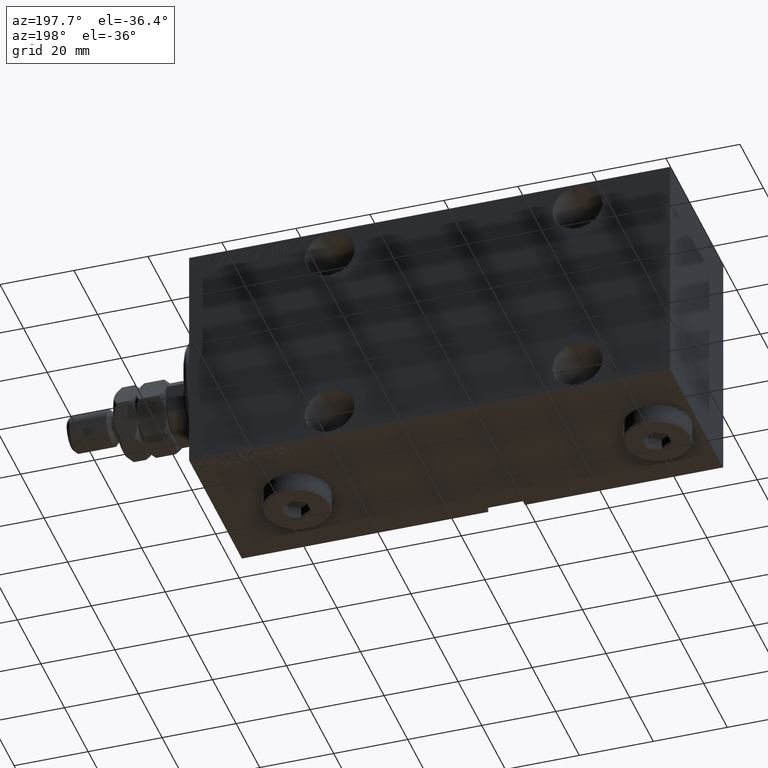
[diagram: clean part render]
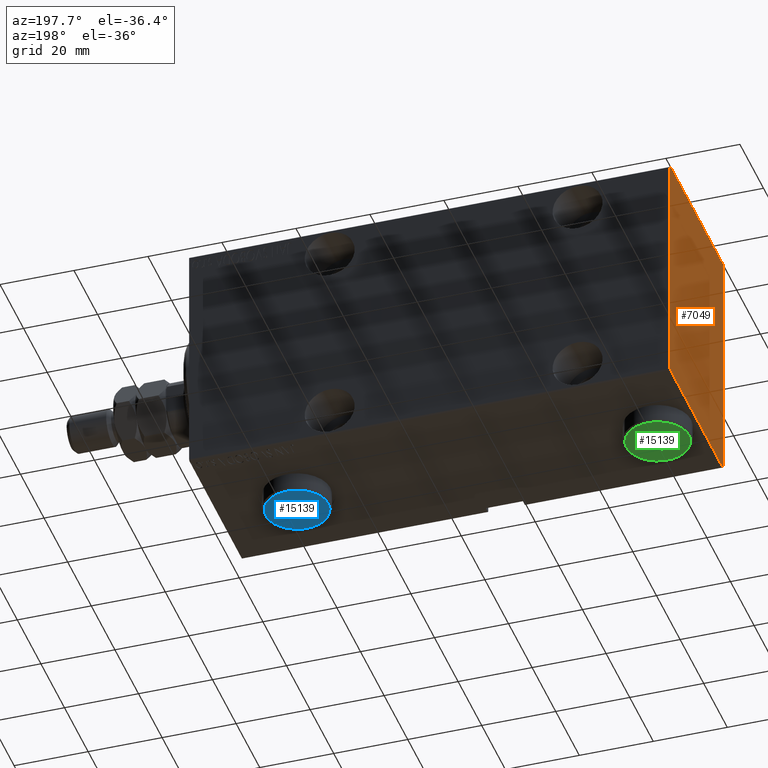
[diagram: same view with three faces highlighted in distinct colors, each labeled with its STEP entity id]
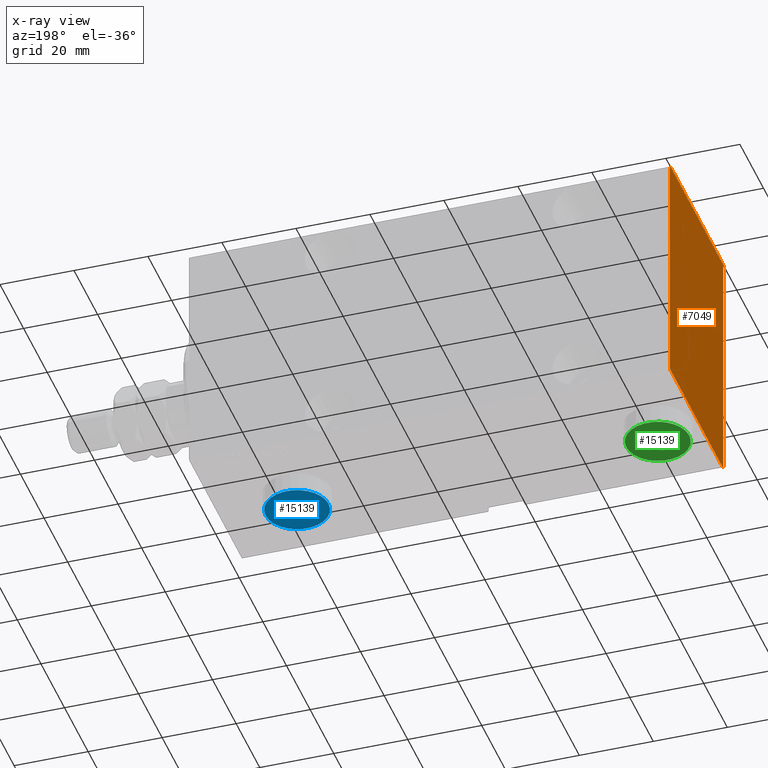
[diagram: x-ray of the same camera — body ghosted, the three highlighted faces saturated]
A machine part, auxiliary view with three faces highlighted in distinct colors.
The next image is the same camera in x-ray (body ghosted, the three faces saturated) — at least one of them is partly hidden behind the body in this view.
Their STEP definitions:

[orange] entity #7049 — the highlighted planar face has unit normal (-1, 0, 0).
#67 = PLANE ( 'NONE',  #12919 ) ;
#446 = ORIENTED_EDGE ( 'NONE', *, *, #28469, .T. ) ;
#931 = DIRECTION ( 'NONE',  ( 0.000000000000000000, 1.000000000000000000, 0.000000000000000000 ) ) ;
#2211 = EDGE_CURVE ( 'NONE', #10384, #12604, #6983, .T. ) ;
#2829 = EDGE_CURVE ( 'NONE', #12604, #15970, #19184, .T. ) ;
#4283 = CARTESIAN_POINT ( 'NONE',  ( 130.0000000000000000, -27.34999999999999076, -27.34999999999999076 ) ) ;
#5283 = CARTESIAN_POINT ( 'NONE',  ( 130.0000000000000000, 22.49999999999999645, 32.20000000000000284 ) ) ;
#6983 = LINE ( 'NONE', #35369, #31333 ) ;
#7049 = ADVANCED_FACE ( 'NONE', ( #42419 ), #67, .T. ) ;
#7287 = DIRECTION ( 'NONE',  ( 0.000000000000000000, 0.000000000000000000, -1.000000000000000000 ) ) ;
#7296 = DIRECTION ( 'NONE',  ( -0.000000000000000000, 0.7071067811865474617, 0.7071067811865474617 ) ) ;
#7636 = EDGE_CURVE ( 'NONE', #35676, #17158, #22506, .T. ) ;
#8092 = VERTEX_POINT ( 'NONE', #22098 ) ;
#8664 = VECTOR ( 'NONE', #29618, 1000.000000000000114 ) ;
#9105 = EDGE_CURVE ( 'NONE', #17158, #8092, #9768, .T. ) ;
#9322 = CARTESIAN_POINT ( 'NONE',  ( 130.0000000000000000, 22.50000000000000355, -32.19999999999999574 ) ) ;
#9768 = LINE ( 'NONE', #16521, #30049 ) ;
#10384 = VERTEX_POINT ( 'NONE', #17374 ) ;
#10665 = CARTESIAN_POINT ( 'NONE',  ( 130.0000000000000000, -22.19999999999998863, -32.50000000000000000 ) ) ;
#12604 = VERTEX_POINT ( 'NONE', #34879 ) ;
#12919 = AXIS2_PLACEMENT_3D ( 'NONE', #24942, #39162, #7287 ) ;
#13404 = VECTOR ( 'NONE', #931, 1000.000000000000000 ) ;
#14887 = CARTESIAN_POINT ( 'NONE',  ( 130.0000000000000000, -22.49999999999999645, -32.50000000000000000 ) ) ;
#15520 = LINE ( 'NONE', #40880, #40885 ) ;
#15748 = DIRECTION ( 'NONE',  ( 0.000000000000000000, -1.000000000000000000, -1.541976423090495633E-16 ) ) ;
#15970 = VERTEX_POINT ( 'NONE', #25459 ) ;
#16247 = EDGE_CURVE ( 'NONE', #27125, #35676, #42429, .T. ) ;
#16256 = ORIENTED_EDGE ( 'NONE', *, *, #35409, .T. ) ;
#16521 = CARTESIAN_POINT ( 'NONE',  ( 130.0000000000000000, 27.34999999999974207, 27.35000000000037446 ) ) ;
#17158 = VERTEX_POINT ( 'NONE', #5283 ) ;
#17374 = CARTESIAN_POINT ( 'NONE',  ( 130.0000000000000000, -22.19999999999999929, 32.50000000000000000 ) ) ;
#17685 = DIRECTION ( 'NONE',  ( 0.000000000000000000, -0.7071067811865474617, -0.7071067811865474617 ) ) ;
#19184 = LINE ( 'NONE', #43392, #28376 ) ;
#20453 = ORIENTED_EDGE ( 'NONE', *, *, #2211, .T. ) ;
#21697 = CARTESIAN_POINT ( 'NONE',  ( 130.0000000000000000, 27.34999999999999432, -27.34999999999999432 ) ) ;
#22098 = CARTESIAN_POINT ( 'NONE',  ( 130.0000000000000000, 22.19999999999998863, 32.50000000000000711 ) ) ;
#22506 = LINE ( 'NONE', #36484, #23339 ) ;
#23339 = VECTOR ( 'NONE', #43923, 1000.000000000000000 ) ;
#24171 = DIRECTION ( 'NONE',  ( -0.000000000000000000, -0.7071067811865556774, 0.7071067811865393571 ) ) ;
#24942 = CARTESIAN_POINT ( 'NONE',  ( 130.0000000000000000, 0.000000000000000000, 0.000000000000000000 ) ) ;
#25459 = CARTESIAN_POINT ( 'NONE',  ( 130.0000000000000000, -22.49999999999999645, -32.19999999999999574 ) ) ;
#27125 = VERTEX_POINT ( 'NONE', #30139 ) ;
#28376 = VECTOR ( 'NONE', #36647, 1000.000000000000000 ) ;
#28469 = EDGE_CURVE ( 'NONE', #33823, #27125, #32800, .T. ) ;
#28999 = EDGE_CURVE ( 'NONE', #8092, #10384, #15520, .T. ) ;
#29618 = DIRECTION ( 'NONE',  ( -0.000000000000000000, 0.7071067811865474617, -0.7071067811865474617 ) ) ;
#30049 = VECTOR ( 'NONE', #24171, 1000.000000000000000 ) ;
#30139 = CARTESIAN_POINT ( 'NONE',  ( 130.0000000000000000, 22.19999999999998153, -32.50000000000000000 ) ) ;
#31333 = VECTOR ( 'NONE', #17685, 1000.000000000000114 ) ;
#31678 = ORIENTED_EDGE ( 'NONE', *, *, #16247, .T. ) ;
#32800 = LINE ( 'NONE', #14887, #13404 ) ;
#33823 = VERTEX_POINT ( 'NONE', #10665 ) ;
#34142 = ORIENTED_EDGE ( 'NONE', *, *, #28999, .T. ) ;
#34705 = VECTOR ( 'NONE', #7296, 1000.000000000000114 ) ;
#34879 = CARTESIAN_POINT ( 'NONE',  ( 130.0000000000000000, -22.49999999999999645, 32.20000000000001705 ) ) ;
#35369 = CARTESIAN_POINT ( 'NONE',  ( 130.0000000000000000, -27.35000000000000497, 27.35000000000000497 ) ) ;
#35409 = EDGE_CURVE ( 'NONE', #15970, #33823, #36618, .T. ) ;
#35676 = VERTEX_POINT ( 'NONE', #9322 ) ;
#36484 = CARTESIAN_POINT ( 'NONE',  ( 130.0000000000000000, 22.50000000000000355, -32.50000000000000000 ) ) ;
#36618 = LINE ( 'NONE', #4283, #8664 ) ;
#36647 = DIRECTION ( 'NONE',  ( 0.000000000000000000, 0.000000000000000000, -1.000000000000000000 ) ) ;
#39162 = DIRECTION ( 'NONE',  ( 1.000000000000000000, 0.000000000000000000, 0.000000000000000000 ) ) ;
#40880 = CARTESIAN_POINT ( 'NONE',  ( 130.0000000000000000, 22.49999999999999645, 32.50000000000000711 ) ) ;
#40885 = VECTOR ( 'NONE', #15748, 1000.000000000000000 ) ;
#42359 = ORIENTED_EDGE ( 'NONE', *, *, #7636, .T. ) ;
#42419 = FACE_OUTER_BOUND ( 'NONE', #43212, .T. ) ;
#42429 = LINE ( 'NONE', #21697, #34705 ) ;
#42739 = ORIENTED_EDGE ( 'NONE', *, *, #2829, .T. ) ;
#43212 = EDGE_LOOP ( 'NONE', ( #446, #31678, #42359, #46048, #34142, #20453, #42739, #16256 ) ) ;
#43392 = CARTESIAN_POINT ( 'NONE',  ( 130.0000000000000000, -22.49999999999999645, 32.50000000000000000 ) ) ;
#43923 = DIRECTION ( 'NONE',  ( 0.000000000000000000, -1.067522139062650425E-16, 1.000000000000000000 ) ) ;
#46048 = ORIENTED_EDGE ( 'NONE', *, *, #9105, .T. ) ;

[blue] entity #15139 — the highlighted planar face has unit normal (-0, 0, -1).
#15 = VERTEX_POINT ( 'NONE', #29333 ) ;
#1932 = EDGE_CURVE ( 'NONE', #9987, #45602, #23910, .T. ) ;
#2076 = ORIENTED_EDGE ( 'NONE', *, *, #1932, .T. ) ;
#2516 = CARTESIAN_POINT ( 'NONE',  ( 0.000000000000000000, 0.000000000000000000, 5.000000000000000000 ) ) ;
#2871 = DIRECTION ( 'NONE',  ( 1.000000000000000000, 0.000000000000000000, -0.000000000000000000 ) ) ;
#3092 = LINE ( 'NONE', #28662, #19680 ) ;
#3214 = ORIENTED_EDGE ( 'NONE', *, *, #26721, .T. ) ;
#3865 = AXIS2_PLACEMENT_3D ( 'NONE', #26139, #4071, #35955 ) ;
#4071 = DIRECTION ( 'NONE',  ( 0.000000000000000000, 0.000000000000000000, 1.000000000000000000 ) ) ;
#4686 = CARTESIAN_POINT ( 'NONE',  ( 3.250000000000003109, 2.165063509461103042, 5.000000000000000000 ) ) ;
#5906 = FACE_OUTER_BOUND ( 'NONE', #8350, .T. ) ;
#7216 = VECTOR ( 'NONE', #33062, 1000.000000000000000 ) ;
#7428 = VERTEX_POINT ( 'NONE', #26725 ) ;
#8350 = EDGE_LOOP ( 'NONE', ( #2076, #17476 ) ) ;
#9285 = DIRECTION ( 'NONE',  ( -0.8660254037844387076, -0.4999999999999998890, 0.000000000000000000 ) ) ;
#9466 = EDGE_CURVE ( 'NONE', #24605, #7428, #9492, .T. ) ;
#9481 = EDGE_CURVE ( 'NONE', #7428, #32856, #45311, .T. ) ;
#9492 = LINE ( 'NONE', #44634, #45691 ) ;
#9987 = VERTEX_POINT ( 'NONE', #12811 ) ;
#10048 = DIRECTION ( 'NONE',  ( 0.000000000000000000, -1.000000000000000000, 0.000000000000000000 ) ) ;
#10152 = AXIS2_PLACEMENT_3D ( 'NONE', #41733, #38468, #2871 ) ;
#10735 = LINE ( 'NONE', #45420, #42309 ) ;
#10751 = VECTOR ( 'NONE', #33688, 1000.000000000000000 ) ;
#12811 = CARTESIAN_POINT ( 'NONE',  ( -8.500000000000010658, 0.000000000000000000, 5.000000000000000000 ) ) ;
#12883 = ORIENTED_EDGE ( 'NONE', *, *, #38353, .T. ) ;
#15139 = ADVANCED_FACE ( 'NONE', ( #19870, #5906 ), #23805, .T. ) ;
#16705 = DIRECTION ( 'NONE',  ( 0.000000000000000000, 0.000000000000000000, 1.000000000000000000 ) ) ;
#17090 = VECTOR ( 'NONE', #9285, 1000.000000000000000 ) ;
#17476 = ORIENTED_EDGE ( 'NONE', *, *, #42983, .T. ) ;
#19680 = VECTOR ( 'NONE', #45904, 1000.000000000000000 ) ;
#19756 = EDGE_CURVE ( 'NONE', #23122, #15, #22364, .T. ) ;
#19870 = FACE_BOUND ( 'NONE', #33682, .T. ) ;
#20433 = CARTESIAN_POINT ( 'NONE',  ( 0.2500000000000027756, -3.897114317029979347, 5.000000000000000000 ) ) ;
#21586 = CIRCLE ( 'NONE', #44656, 8.500000000000010658 ) ;
#22364 = LINE ( 'NONE', #4686, #7216 ) ;
#22994 = CARTESIAN_POINT ( 'NONE',  ( -3.500000000000006661, 1.732050807568878081, 5.000000000000000000 ) ) ;
#23122 = VERTEX_POINT ( 'NONE', #30401 ) ;
#23673 = DIRECTION ( 'NONE',  ( -0.8660254037844385966, 0.4999999999999999445, 0.000000000000000000 ) ) ;
#23805 = PLANE ( 'NONE',  #10152 ) ;
#23910 = CIRCLE ( 'NONE', #3865, 8.500000000000010658 ) ;
#24605 = VERTEX_POINT ( 'NONE', #44288 ) ;
#26139 = CARTESIAN_POINT ( 'NONE',  ( 0.000000000000000000, 0.000000000000000000, 5.000000000000000000 ) ) ;
#26721 = EDGE_CURVE ( 'NONE', #15, #41058, #10735, .T. ) ;
#26725 = CARTESIAN_POINT ( 'NONE',  ( -3.500000000000006661, -2.020725942163694278, 5.000000000000000000 ) ) ;
#28662 = CARTESIAN_POINT ( 'NONE',  ( -0.2500000000000027756, 3.897114317029978459, 5.000000000000000000 ) ) ;
#28784 = EDGE_CURVE ( 'NONE', #41058, #24605, #45339, .T. ) ;
#29333 = CARTESIAN_POINT ( 'NONE',  ( 3.500000000000006661, 2.020725942163694722, 5.000000000000000000 ) ) ;
#30401 = CARTESIAN_POINT ( 'NONE',  ( 1.590596867181068292E-15, 4.041451884327386779, 5.000000000000000000 ) ) ;
#30888 = DIRECTION ( 'NONE',  ( 1.000000000000000000, 0.000000000000000000, 0.000000000000000000 ) ) ;
#32856 = VERTEX_POINT ( 'NONE', #40514 ) ;
#33062 = DIRECTION ( 'NONE',  ( 0.8660254037844387076, -0.4999999999999998890, 0.000000000000000000 ) ) ;
#33682 = EDGE_LOOP ( 'NONE', ( #34280, #12883, #35382, #3214, #36908, #39515 ) ) ;
#33688 = DIRECTION ( 'NONE',  ( 0.000000000000000000, 1.000000000000000000, 0.000000000000000000 ) ) ;
#34280 = ORIENTED_EDGE ( 'NONE', *, *, #9481, .T. ) ;
#34591 = CARTESIAN_POINT ( 'NONE',  ( 8.500000000000010658, 1.071565949253934716E-15, 5.000000000000000000 ) ) ;
#35382 = ORIENTED_EDGE ( 'NONE', *, *, #19756, .T. ) ;
#35585 = CARTESIAN_POINT ( 'NONE',  ( 3.500000000000006661, -2.020725942163693833, 5.000000000000000000 ) ) ;
#35955 = DIRECTION ( 'NONE',  ( 1.000000000000000000, 0.000000000000000000, 0.000000000000000000 ) ) ;
#36908 = ORIENTED_EDGE ( 'NONE', *, *, #28784, .T. ) ;
#38353 = EDGE_CURVE ( 'NONE', #32856, #23122, #3092, .T. ) ;
#38468 = DIRECTION ( 'NONE',  ( 0.000000000000000000, 0.000000000000000000, 1.000000000000000000 ) ) ;
#39515 = ORIENTED_EDGE ( 'NONE', *, *, #9466, .T. ) ;
#40514 = CARTESIAN_POINT ( 'NONE',  ( -3.500000000000006661, 2.020725942163692945, 5.000000000000000000 ) ) ;
#41058 = VERTEX_POINT ( 'NONE', #35585 ) ;
#41733 = CARTESIAN_POINT ( 'NONE',  ( 0.000000000000000000, 0.000000000000000000, 5.000000000000000000 ) ) ;
#42309 = VECTOR ( 'NONE', #10048, 1000.000000000000000 ) ;
#42983 = EDGE_CURVE ( 'NONE', #45602, #9987, #21586, .T. ) ;
#44288 = CARTESIAN_POINT ( 'NONE',  ( -1.006139216460143630E-15, -4.041451884327387667, 5.000000000000000000 ) ) ;
#44634 = CARTESIAN_POINT ( 'NONE',  ( -3.250000000000003109, -2.165063509461102598, 5.000000000000000000 ) ) ;
#44656 = AXIS2_PLACEMENT_3D ( 'NONE', #2516, #16705, #30888 ) ;
#45311 = LINE ( 'NONE', #22994, #10751 ) ;
#45339 = LINE ( 'NONE', #20433, #17090 ) ;
#45420 = CARTESIAN_POINT ( 'NONE',  ( 3.500000000000006661, -1.732050807568878303, 5.000000000000000000 ) ) ;
#45602 = VERTEX_POINT ( 'NONE', #34591 ) ;
#45691 = VECTOR ( 'NONE', #23673, 1000.000000000000114 ) ;
#45904 = DIRECTION ( 'NONE',  ( 0.8660254037844387076, 0.4999999999999998335, 0.000000000000000000 ) ) ;

[green] entity #15139 — the highlighted planar face has unit normal (-0, 0, -1).
#15 = VERTEX_POINT ( 'NONE', #29333 ) ;
#1932 = EDGE_CURVE ( 'NONE', #9987, #45602, #23910, .T. ) ;
#2076 = ORIENTED_EDGE ( 'NONE', *, *, #1932, .T. ) ;
#2516 = CARTESIAN_POINT ( 'NONE',  ( 0.000000000000000000, 0.000000000000000000, 5.000000000000000000 ) ) ;
#2871 = DIRECTION ( 'NONE',  ( 1.000000000000000000, 0.000000000000000000, -0.000000000000000000 ) ) ;
#3092 = LINE ( 'NONE', #28662, #19680 ) ;
#3214 = ORIENTED_EDGE ( 'NONE', *, *, #26721, .T. ) ;
#3865 = AXIS2_PLACEMENT_3D ( 'NONE', #26139, #4071, #35955 ) ;
#4071 = DIRECTION ( 'NONE',  ( 0.000000000000000000, 0.000000000000000000, 1.000000000000000000 ) ) ;
#4686 = CARTESIAN_POINT ( 'NONE',  ( 3.250000000000003109, 2.165063509461103042, 5.000000000000000000 ) ) ;
#5906 = FACE_OUTER_BOUND ( 'NONE', #8350, .T. ) ;
#7216 = VECTOR ( 'NONE', #33062, 1000.000000000000000 ) ;
#7428 = VERTEX_POINT ( 'NONE', #26725 ) ;
#8350 = EDGE_LOOP ( 'NONE', ( #2076, #17476 ) ) ;
#9285 = DIRECTION ( 'NONE',  ( -0.8660254037844387076, -0.4999999999999998890, 0.000000000000000000 ) ) ;
#9466 = EDGE_CURVE ( 'NONE', #24605, #7428, #9492, .T. ) ;
#9481 = EDGE_CURVE ( 'NONE', #7428, #32856, #45311, .T. ) ;
#9492 = LINE ( 'NONE', #44634, #45691 ) ;
#9987 = VERTEX_POINT ( 'NONE', #12811 ) ;
#10048 = DIRECTION ( 'NONE',  ( 0.000000000000000000, -1.000000000000000000, 0.000000000000000000 ) ) ;
#10152 = AXIS2_PLACEMENT_3D ( 'NONE', #41733, #38468, #2871 ) ;
#10735 = LINE ( 'NONE', #45420, #42309 ) ;
#10751 = VECTOR ( 'NONE', #33688, 1000.000000000000000 ) ;
#12811 = CARTESIAN_POINT ( 'NONE',  ( -8.500000000000010658, 0.000000000000000000, 5.000000000000000000 ) ) ;
#12883 = ORIENTED_EDGE ( 'NONE', *, *, #38353, .T. ) ;
#15139 = ADVANCED_FACE ( 'NONE', ( #19870, #5906 ), #23805, .T. ) ;
#16705 = DIRECTION ( 'NONE',  ( 0.000000000000000000, 0.000000000000000000, 1.000000000000000000 ) ) ;
#17090 = VECTOR ( 'NONE', #9285, 1000.000000000000000 ) ;
#17476 = ORIENTED_EDGE ( 'NONE', *, *, #42983, .T. ) ;
#19680 = VECTOR ( 'NONE', #45904, 1000.000000000000000 ) ;
#19756 = EDGE_CURVE ( 'NONE', #23122, #15, #22364, .T. ) ;
#19870 = FACE_BOUND ( 'NONE', #33682, .T. ) ;
#20433 = CARTESIAN_POINT ( 'NONE',  ( 0.2500000000000027756, -3.897114317029979347, 5.000000000000000000 ) ) ;
#21586 = CIRCLE ( 'NONE', #44656, 8.500000000000010658 ) ;
#22364 = LINE ( 'NONE', #4686, #7216 ) ;
#22994 = CARTESIAN_POINT ( 'NONE',  ( -3.500000000000006661, 1.732050807568878081, 5.000000000000000000 ) ) ;
#23122 = VERTEX_POINT ( 'NONE', #30401 ) ;
#23673 = DIRECTION ( 'NONE',  ( -0.8660254037844385966, 0.4999999999999999445, 0.000000000000000000 ) ) ;
#23805 = PLANE ( 'NONE',  #10152 ) ;
#23910 = CIRCLE ( 'NONE', #3865, 8.500000000000010658 ) ;
#24605 = VERTEX_POINT ( 'NONE', #44288 ) ;
#26139 = CARTESIAN_POINT ( 'NONE',  ( 0.000000000000000000, 0.000000000000000000, 5.000000000000000000 ) ) ;
#26721 = EDGE_CURVE ( 'NONE', #15, #41058, #10735, .T. ) ;
#26725 = CARTESIAN_POINT ( 'NONE',  ( -3.500000000000006661, -2.020725942163694278, 5.000000000000000000 ) ) ;
#28662 = CARTESIAN_POINT ( 'NONE',  ( -0.2500000000000027756, 3.897114317029978459, 5.000000000000000000 ) ) ;
#28784 = EDGE_CURVE ( 'NONE', #41058, #24605, #45339, .T. ) ;
#29333 = CARTESIAN_POINT ( 'NONE',  ( 3.500000000000006661, 2.020725942163694722, 5.000000000000000000 ) ) ;
#30401 = CARTESIAN_POINT ( 'NONE',  ( 1.590596867181068292E-15, 4.041451884327386779, 5.000000000000000000 ) ) ;
#30888 = DIRECTION ( 'NONE',  ( 1.000000000000000000, 0.000000000000000000, 0.000000000000000000 ) ) ;
#32856 = VERTEX_POINT ( 'NONE', #40514 ) ;
#33062 = DIRECTION ( 'NONE',  ( 0.8660254037844387076, -0.4999999999999998890, 0.000000000000000000 ) ) ;
#33682 = EDGE_LOOP ( 'NONE', ( #34280, #12883, #35382, #3214, #36908, #39515 ) ) ;
#33688 = DIRECTION ( 'NONE',  ( 0.000000000000000000, 1.000000000000000000, 0.000000000000000000 ) ) ;
#34280 = ORIENTED_EDGE ( 'NONE', *, *, #9481, .T. ) ;
#34591 = CARTESIAN_POINT ( 'NONE',  ( 8.500000000000010658, 1.071565949253934716E-15, 5.000000000000000000 ) ) ;
#35382 = ORIENTED_EDGE ( 'NONE', *, *, #19756, .T. ) ;
#35585 = CARTESIAN_POINT ( 'NONE',  ( 3.500000000000006661, -2.020725942163693833, 5.000000000000000000 ) ) ;
#35955 = DIRECTION ( 'NONE',  ( 1.000000000000000000, 0.000000000000000000, 0.000000000000000000 ) ) ;
#36908 = ORIENTED_EDGE ( 'NONE', *, *, #28784, .T. ) ;
#38353 = EDGE_CURVE ( 'NONE', #32856, #23122, #3092, .T. ) ;
#38468 = DIRECTION ( 'NONE',  ( 0.000000000000000000, 0.000000000000000000, 1.000000000000000000 ) ) ;
#39515 = ORIENTED_EDGE ( 'NONE', *, *, #9466, .T. ) ;
#40514 = CARTESIAN_POINT ( 'NONE',  ( -3.500000000000006661, 2.020725942163692945, 5.000000000000000000 ) ) ;
#41058 = VERTEX_POINT ( 'NONE', #35585 ) ;
#41733 = CARTESIAN_POINT ( 'NONE',  ( 0.000000000000000000, 0.000000000000000000, 5.000000000000000000 ) ) ;
#42309 = VECTOR ( 'NONE', #10048, 1000.000000000000000 ) ;
#42983 = EDGE_CURVE ( 'NONE', #45602, #9987, #21586, .T. ) ;
#44288 = CARTESIAN_POINT ( 'NONE',  ( -1.006139216460143630E-15, -4.041451884327387667, 5.000000000000000000 ) ) ;
#44634 = CARTESIAN_POINT ( 'NONE',  ( -3.250000000000003109, -2.165063509461102598, 5.000000000000000000 ) ) ;
#44656 = AXIS2_PLACEMENT_3D ( 'NONE', #2516, #16705, #30888 ) ;
#45311 = LINE ( 'NONE', #22994, #10751 ) ;
#45339 = LINE ( 'NONE', #20433, #17090 ) ;
#45420 = CARTESIAN_POINT ( 'NONE',  ( 3.500000000000006661, -1.732050807568878303, 5.000000000000000000 ) ) ;
#45602 = VERTEX_POINT ( 'NONE', #34591 ) ;
#45691 = VECTOR ( 'NONE', #23673, 1000.000000000000114 ) ;
#45904 = DIRECTION ( 'NONE',  ( 0.8660254037844387076, 0.4999999999999998335, 0.000000000000000000 ) ) ;